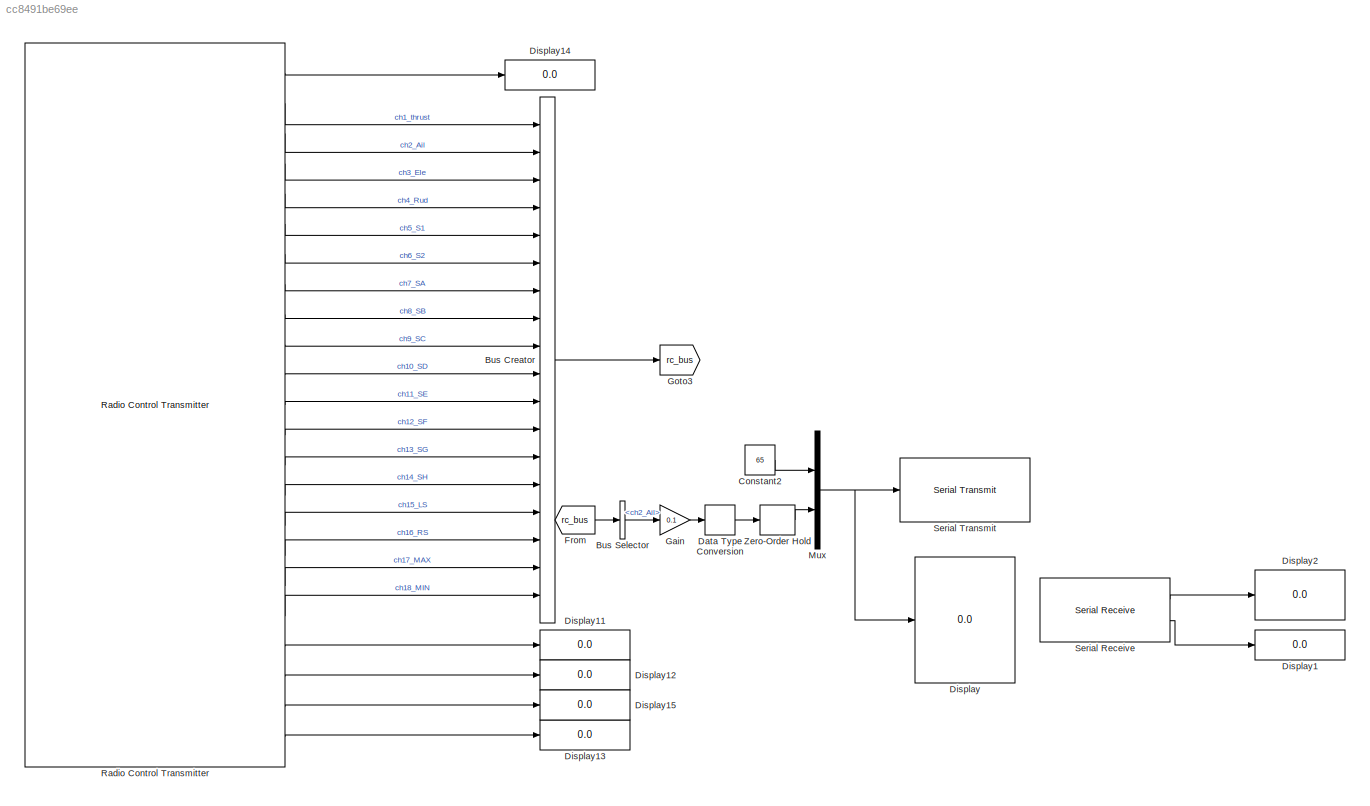
MODEL slx_cc8491be69ee
KIND model
CONFIG AbsTol = auto
CONFIG EnableMultiTasking = on
CONFIG FixedStep = auto
CONFIG MaxStep = auto
CONFIG MinStep = auto
CONFIG RelTol = 1e-3
CONFIG SampleTimeConstraint = Unconstrained
CONFIG Solver = FixedStepAuto
CONFIG SolverName = FixedStepAuto
CONFIG StartTime = 0.0
CONFIG StopTime = 10.0
BLOCK [BusCreator] Bus Creator
  DisplayOption = bar
  InheritFromInputs = on
  Inputs = 18
  Ports = [18, 1]
BLOCK [BusSelector] Bus Selector
  OutputAsBus = off
  OutputSignals = ch2_Ail
  Ports = [1, 1]
BLOCK [Constant] Constant2
  OutDataTypeStr = uint8
  SampleTime = 0.1
  Value = 65
BLOCK [DataTypeConversion] Data Type Conversion
  OutDataTypeStr = uint8
  RndMeth = Floor
  SaturateOnIntegerOverflow = off
BLOCK [Display] Display
  Decimation = 1
  Ports = [1]
BLOCK [Display] Display1
  Decimation = 1
  Ports = [1]
BLOCK [Display] Display11
  Decimation = 1
  Ports = [1]
BLOCK [Display] Display12
  Decimation = 1
  Ports = [1]
BLOCK [Display] Display13
  Decimation = 1
  Ports = [1]
BLOCK [Display] Display14
  Decimation = 1
  Ports = [1]
BLOCK [Display] Display15
  Decimation = 1
  Ports = [1]
BLOCK [Display] Display2
  Decimation = 1
  Ports = [1]
BLOCK [From] From
  GotoTag = rc_bus
BLOCK [Gain] Gain
  Gain = 0.1
  OutDataTypeStr = Inherit: Inherit via internal rule
  ParamDataTypeStr = Inherit: Inherit via internal rule
  SaturateOnIntegerOverflow = off
BLOCK [Goto] Goto3
  GotoTag = rc_bus
BLOCK [Mux] Mux
  DisplayOption = bar
  Inputs = 2
  Ports = [2, 1]
BLOCK [Reference] Radio Control Transmitter  REF=px4Sensorslib/Radio Control Transmitter
  Ports = [0, 23]
  SourceBlock = px4Sensorslib/Radio Control Transmitter
  SourceProductName = Embedded Coder Support Package for PX4 Autopilots
  SourceType = PX4 Radio Control Transmitter
BLOCK [Reference] Serial Receive  REF=px4lib/Serial Receive
  Ports = [0, 2]
  SourceBlock = px4lib/Serial Receive
  SourceProductName = Embedded Coder Support Package for PX4 Autopilots
  SourceType = PX4 Serial Receive
BLOCK [Reference] Serial Transmit  REF=px4lib/Serial Transmit
  Ports = [1]
  SourceBlock = px4lib/Serial Transmit
  SourceProductName = Embedded Coder Support Package for PX4 Autopilots
  SourceType = PX4 Serial Transmit
BLOCK [ZeroOrderHold] Zero-Order Hold
  SampleTime = 0.1
LINE Bus Creator:1 -> Goto3:1
LINE Bus Selector:1 -> Gain:1
LINE Constant2:1 -> Mux:1
LINE Data Type Conversion:1 -> Zero-Order Hold:1
LINE From:1 -> Bus Selector:1
LINE Gain:1 -> Data Type Conversion:1
NET Mux:1 -> Display:1, Serial Transmit:1
LINE Radio Control Transmitter:1 -> Display14:1
LINE Radio Control Transmitter:10 -> Bus Creator:9
LINE Radio Control Transmitter:11 -> Bus Creator:10
LINE Radio Control Transmitter:12 -> Bus Creator:11
LINE Radio Control Transmitter:13 -> Bus Creator:12
LINE Radio Control Transmitter:14 -> Bus Creator:13
LINE Radio Control Transmitter:15 -> Bus Creator:14
LINE Radio Control Transmitter:16 -> Bus Creator:15
LINE Radio Control Transmitter:17 -> Bus Creator:16
LINE Radio Control Transmitter:18 -> Bus Creator:17
LINE Radio Control Transmitter:19 -> Bus Creator:18
LINE Radio Control Transmitter:2 -> Bus Creator:1
LINE Radio Control Transmitter:20 -> Display11:1
LINE Radio Control Transmitter:21 -> Display12:1
LINE Radio Control Transmitter:22 -> Display15:1
LINE Radio Control Transmitter:23 -> Display13:1
LINE Radio Control Transmitter:3 -> Bus Creator:2
LINE Radio Control Transmitter:4 -> Bus Creator:3
LINE Radio Control Transmitter:5 -> Bus Creator:4
LINE Radio Control Transmitter:6 -> Bus Creator:5
LINE Radio Control Transmitter:7 -> Bus Creator:6
LINE Radio Control Transmitter:8 -> Bus Creator:7
LINE Radio Control Transmitter:9 -> Bus Creator:8
LINE Serial Receive:1 -> Display2:1
LINE Serial Receive:2 -> Display1:1
LINE Zero-Order Hold:1 -> Mux:2
note: NET lines group one-source signal fan-out (src -> all destinations, sorted); 1:1 wires keep LINE
